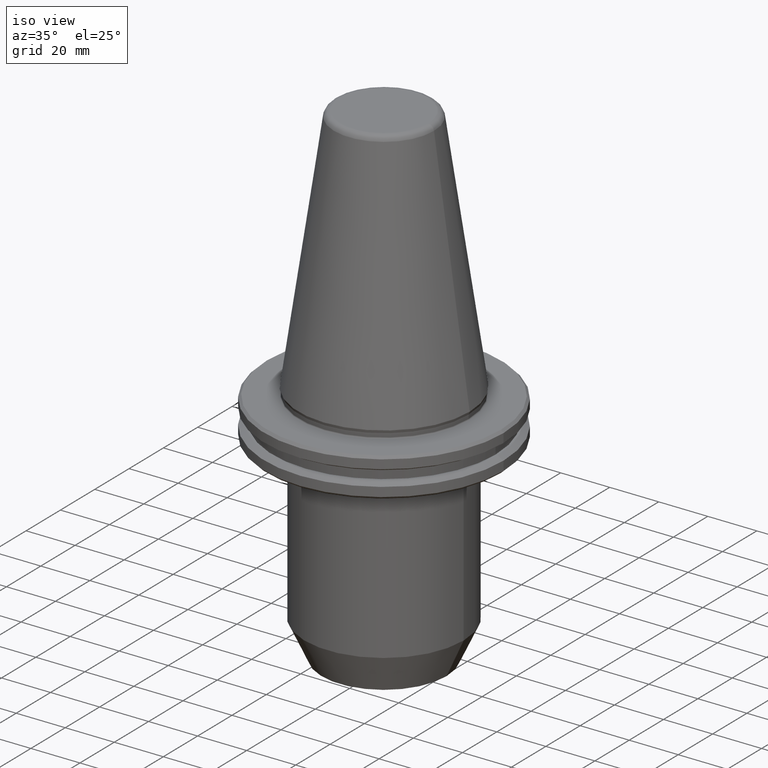
[diagram: clean part render]
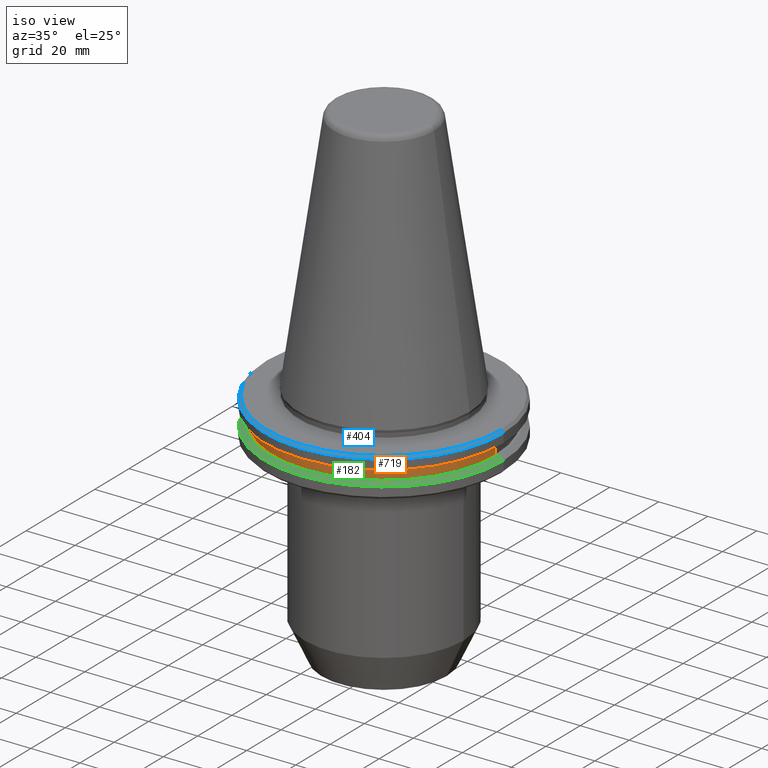
[diagram: same view with three faces highlighted in distinct colors, each labeled with its STEP entity id]
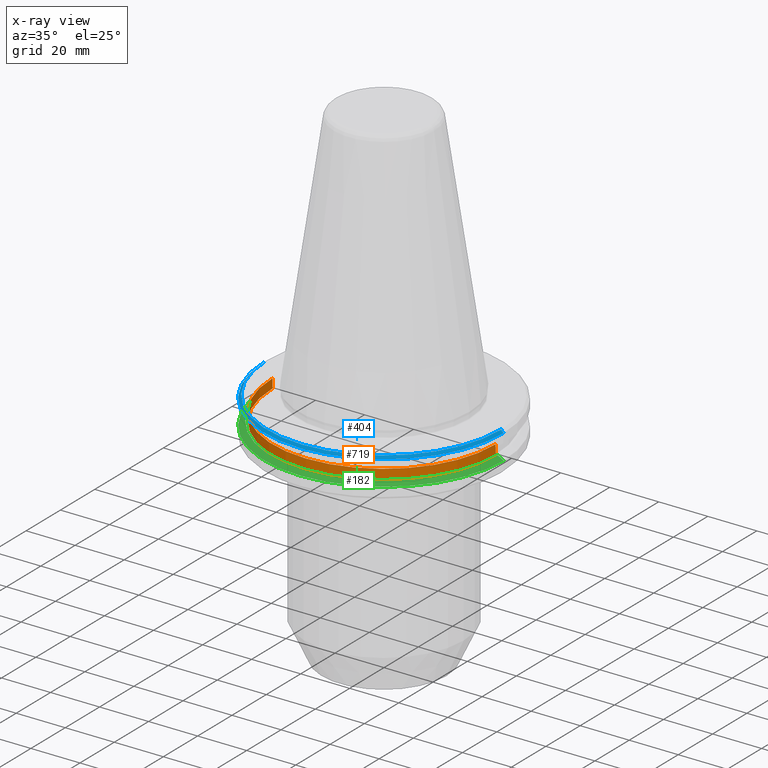
[diagram: x-ray of the same camera — body ghosted, the three highlighted faces saturated]
A machine part, iso view with three faces highlighted in distinct colors.
The next image is the same camera in x-ray (body ghosted, the three faces saturated) — at least one of them is partly hidden behind the body in this view.
Their STEP definitions:

[orange] entity #719 — the highlighted cylindrical surface (partial cylindrical patch) has radius 45.5 mm, axis along (-0, -0, 1).
#20 = VECTOR ( 'NONE', #390, 1000.000000000000000 ) ;
#42 = FACE_OUTER_BOUND ( 'NONE', #221, .T. ) ;
#92 = DIRECTION ( 'NONE',  ( -0.0000000000000000000, -0.0000000000000000000, 1.000000000000000000 ) ) ;
#96 = CARTESIAN_POINT ( 'NONE',  ( 45.50000000000020600, 0.0000000000000000000, -12.97500000000006900 ) ) ;
#97 = VECTOR ( 'NONE', #92, 1000.000000000000000 ) ;
#123 = ORIENTED_EDGE ( 'NONE', *, *, #367, .T. ) ;
#166 = AXIS2_PLACEMENT_3D ( 'NONE', #344, #880, #705 ) ;
#214 = VERTEX_POINT ( 'NONE', #96 ) ;
#221 = EDGE_LOOP ( 'NONE', ( #351, #375, #123, #531 ) ) ;
#237 = LINE ( 'NONE', #779, #20 ) ;
#344 = CARTESIAN_POINT ( 'NONE',  ( 0.0000000000000000000, 0.0000000000000000000, -12.97500000000006900 ) ) ;
#351 = ORIENTED_EDGE ( 'NONE', *, *, #716, .F. ) ;
#359 = VERTEX_POINT ( 'NONE', #454 ) ;
#367 = EDGE_CURVE ( 'NONE', #214, #872, #718, .T. ) ;
#374 = CARTESIAN_POINT ( 'NONE',  ( 0.0000000000000000000, 0.0000000000000000000, -9.224999999999926800 ) ) ;
#375 = ORIENTED_EDGE ( 'NONE', *, *, #514, .T. ) ;
#390 = DIRECTION ( 'NONE',  ( -0.0000000000000000000, -0.0000000000000000000, 1.000000000000000000 ) ) ;
#413 = CYLINDRICAL_SURFACE ( 'NONE', #825, 45.50000000000020600 ) ;
#414 = DIRECTION ( 'NONE',  ( -0.0000000000000000000, -0.0000000000000000000, 1.000000000000000000 ) ) ;
#454 = CARTESIAN_POINT ( 'NONE',  ( -45.50000000000020600, 5.572142936120482400E-015, -9.224999999999926800 ) ) ;
#514 = EDGE_CURVE ( 'NONE', #594, #214, #836, .T. ) ;
#531 = ORIENTED_EDGE ( 'NONE', *, *, #870, .F. ) ;
#541 = CARTESIAN_POINT ( 'NONE',  ( -45.50000000000020600, 5.572142936120482400E-015, -12.97500000000006900 ) ) ;
#562 = CIRCLE ( 'NONE', #952, 45.50000000000020600 ) ;
#594 = VERTEX_POINT ( 'NONE', #541 ) ;
#705 = DIRECTION ( 'NONE',  ( 1.000000000000000000, 0.0000000000000000000, 0.0000000000000000000 ) ) ;
#716 = EDGE_CURVE ( 'NONE', #594, #359, #237, .T. ) ;
#718 = LINE ( 'NONE', #720, #97 ) ;
#719 = ADVANCED_FACE ( 'NONE', ( #42 ), #413, .T. ) ;
#720 = CARTESIAN_POINT ( 'NONE',  ( 45.50000000000020600, 0.0000000000000000000, 101.7499999999999600 ) ) ;
#779 = CARTESIAN_POINT ( 'NONE',  ( -45.50000000000020600, 5.572142936120482400E-015, 101.7499999999999600 ) ) ;
#825 = AXIS2_PLACEMENT_3D ( 'NONE', #924, #414, #849 ) ;
#836 = CIRCLE ( 'NONE', #166, 45.50000000000020600 ) ;
#849 = DIRECTION ( 'NONE',  ( 1.000000000000000000, 0.0000000000000000000, 0.0000000000000000000 ) ) ;
#870 = EDGE_CURVE ( 'NONE', #359, #872, #562, .T. ) ;
#872 = VERTEX_POINT ( 'NONE', #996 ) ;
#880 = DIRECTION ( 'NONE',  ( -0.0000000000000000000, -0.0000000000000000000, 1.000000000000000000 ) ) ;
#903 = DIRECTION ( 'NONE',  ( -0.0000000000000000000, -0.0000000000000000000, 1.000000000000000000 ) ) ;
#924 = CARTESIAN_POINT ( 'NONE',  ( 0.0000000000000000000, 0.0000000000000000000, 101.7499999999999600 ) ) ;
#952 = AXIS2_PLACEMENT_3D ( 'NONE', #374, #903, #972 ) ;
#972 = DIRECTION ( 'NONE',  ( 1.000000000000000000, 0.0000000000000000000, 0.0000000000000000000 ) ) ;
#996 = CARTESIAN_POINT ( 'NONE',  ( 45.50000000000020600, 0.0000000000000000000, -9.224999999999926800 ) ) ;

[blue] entity #404 — the highlighted conical surface has half-angle 45 deg.
#61 = CONICAL_SURFACE ( 'NONE', #225, 48.74999999999995700, 0.7853981633974482800 ) ;
#139 = DIRECTION ( 'NONE',  ( 1.000000000000000000, 0.0000000000000000000, 0.0000000000000000000 ) ) ;
#178 = ORIENTED_EDGE ( 'NONE', *, *, #703, .T. ) ;
#200 = CIRCLE ( 'NONE', #438, 47.74999999999995700 ) ;
#210 = VERTEX_POINT ( 'NONE', #940 ) ;
#223 = CARTESIAN_POINT ( 'NONE',  ( 0.0000000000000000000, 0.0000000000000000000, -3.199999999999869600 ) ) ;
#225 = AXIS2_PLACEMENT_3D ( 'NONE', #617, #291, #897 ) ;
#262 = CIRCLE ( 'NONE', #320, 48.74999999999995700 ) ;
#283 = CARTESIAN_POINT ( 'NONE',  ( 47.74999999999995700, 5.908920805885974100E-015, -3.199999999999869600 ) ) ;
#285 = EDGE_CURVE ( 'NONE', #597, #827, #200, .T. ) ;
#286 = FACE_OUTER_BOUND ( 'NONE', #650, .T. ) ;
#291 = DIRECTION ( 'NONE',  ( 0.0000000000000000000, 0.0000000000000000000, -1.000000000000000000 ) ) ;
#294 = CARTESIAN_POINT ( 'NONE',  ( 48.74999999999995700, 5.970153145843342400E-015, -4.199999999999870500 ) ) ;
#320 = AXIS2_PLACEMENT_3D ( 'NONE', #887, #540, #745 ) ;
#404 = ADVANCED_FACE ( 'NONE', ( #286 ), #61, .T. ) ;
#416 = DIRECTION ( 'NONE',  ( 0.7071067811865474600, 8.659560562354931600E-017, -0.7071067811865475700 ) ) ;
#423 = ORIENTED_EDGE ( 'NONE', *, *, #526, .F. ) ;
#438 = AXIS2_PLACEMENT_3D ( 'NONE', #223, #676, #139 ) ;
#440 = ORIENTED_EDGE ( 'NONE', *, *, #285, .F. ) ;
#469 = CARTESIAN_POINT ( 'NONE',  ( -47.74999999999995700, 0.0000000000000000000, -3.199999999999869600 ) ) ;
#489 = CARTESIAN_POINT ( 'NONE',  ( -48.74999999999995700, 0.0000000000000000000, -4.199999999999870500 ) ) ;
#526 = EDGE_CURVE ( 'NONE', #827, #567, #981, .T. ) ;
#540 = DIRECTION ( 'NONE',  ( -0.0000000000000000000, -0.0000000000000000000, 1.000000000000000000 ) ) ;
#567 = VERTEX_POINT ( 'NONE', #616 ) ;
#577 = VECTOR ( 'NONE', #416, 1000.000000000000000 ) ;
#597 = VERTEX_POINT ( 'NONE', #469 ) ;
#616 = CARTESIAN_POINT ( 'NONE',  ( 48.74999999999995700, 0.0000000000000000000, -4.199999999999870500 ) ) ;
#617 = CARTESIAN_POINT ( 'NONE',  ( 0.0000000000000000000, 0.0000000000000000000, -4.199999999999870500 ) ) ;
#637 = VECTOR ( 'NONE', #723, 1000.000000000000000 ) ;
#650 = EDGE_LOOP ( 'NONE', ( #423, #440, #917, #178 ) ) ;
#655 = LINE ( 'NONE', #489, #637 ) ;
#676 = DIRECTION ( 'NONE',  ( -0.0000000000000000000, -0.0000000000000000000, 1.000000000000000000 ) ) ;
#703 = EDGE_CURVE ( 'NONE', #210, #567, #262, .T. ) ;
#707 = EDGE_CURVE ( 'NONE', #597, #210, #655, .T. ) ;
#723 = DIRECTION ( 'NONE',  ( -0.7071067811865474600, 0.0000000000000000000, -0.7071067811865475700 ) ) ;
#745 = DIRECTION ( 'NONE',  ( 1.000000000000000000, 0.0000000000000000000, 0.0000000000000000000 ) ) ;
#827 = VERTEX_POINT ( 'NONE', #283 ) ;
#887 = CARTESIAN_POINT ( 'NONE',  ( 0.0000000000000000000, 0.0000000000000000000, -4.199999999999870500 ) ) ;
#897 = DIRECTION ( 'NONE',  ( -1.000000000000000000, 0.0000000000000000000, 0.0000000000000000000 ) ) ;
#917 = ORIENTED_EDGE ( 'NONE', *, *, #707, .T. ) ;
#940 = CARTESIAN_POINT ( 'NONE',  ( -48.74999999999995700, 5.970153145843342400E-015, -4.199999999999870500 ) ) ;
#981 = LINE ( 'NONE', #294, #577 ) ;

[green] entity #182 — the highlighted conical surface has half-angle 60 deg.
#5 = DIRECTION ( 'NONE',  ( -1.000000000000000000, 0.0000000000000000000, 0.0000000000000000000 ) ) ;
#19 = DIRECTION ( 'NONE',  ( -0.0000000000000000000, -0.0000000000000000000, 1.000000000000000000 ) ) ;
#59 = CARTESIAN_POINT ( 'NONE',  ( -46.37259526419124000, 0.0000000000000000000, -12.97500000000006900 ) ) ;
#67 = CARTESIAN_POINT ( 'NONE',  ( 0.0000000000000000000, 0.0000000000000000000, -14.34759526419204800 ) ) ;
#73 = CARTESIAN_POINT ( 'NONE',  ( -48.75000000000018500, 0.0000000000000000000, -14.34759526419204800 ) ) ;
#116 = DIRECTION ( 'NONE',  ( 0.0000000000000000000, 0.0000000000000000000, -1.000000000000000000 ) ) ;
#176 = VECTOR ( 'NONE', #569, 1000.000000000000100 ) ;
#182 = ADVANCED_FACE ( 'NONE', ( #428 ), #408, .T. ) ;
#186 = EDGE_CURVE ( 'NONE', #314, #905, #606, .T. ) ;
#199 = LINE ( 'NONE', #751, #176 ) ;
#314 = VERTEX_POINT ( 'NONE', #59 ) ;
#329 = ORIENTED_EDGE ( 'NONE', *, *, #532, .F. ) ;
#356 = LINE ( 'NONE', #73, #790 ) ;
#408 = CONICAL_SURFACE ( 'NONE', #542, 48.75000000000018500, 1.047197551196599400 ) ;
#412 = CARTESIAN_POINT ( 'NONE',  ( 0.0000000000000000000, 0.0000000000000000000, -12.97500000000006900 ) ) ;
#420 = EDGE_LOOP ( 'NONE', ( #329, #931, #522, #954 ) ) ;
#422 = CARTESIAN_POINT ( 'NONE',  ( 48.75000000000018500, 0.0000000000000000000, -14.34759526419204800 ) ) ;
#428 = FACE_OUTER_BOUND ( 'NONE', #420, .T. ) ;
#465 = VERTEX_POINT ( 'NONE', #709 ) ;
#471 = AXIS2_PLACEMENT_3D ( 'NONE', #67, #604, #773 ) ;
#480 = DIRECTION ( 'NONE',  ( 1.000000000000000000, 0.0000000000000000000, 0.0000000000000000000 ) ) ;
#522 = ORIENTED_EDGE ( 'NONE', *, *, #552, .T. ) ;
#524 = CIRCLE ( 'NONE', #471, 48.75000000000018500 ) ;
#532 = EDGE_CURVE ( 'NONE', #905, #726, #199, .T. ) ;
#538 = AXIS2_PLACEMENT_3D ( 'NONE', #412, #19, #480 ) ;
#542 = AXIS2_PLACEMENT_3D ( 'NONE', #560, #116, #5 ) ;
#552 = EDGE_CURVE ( 'NONE', #314, #465, #356, .T. ) ;
#560 = CARTESIAN_POINT ( 'NONE',  ( 0.0000000000000000000, 0.0000000000000000000, -14.34759526419204800 ) ) ;
#569 = DIRECTION ( 'NONE',  ( 0.8660254037844393700, 1.060575238724907800E-016, -0.4999999999999985000 ) ) ;
#604 = DIRECTION ( 'NONE',  ( -0.0000000000000000000, -0.0000000000000000000, 1.000000000000000000 ) ) ;
#606 = CIRCLE ( 'NONE', #538, 46.37259526419124000 ) ;
#709 = CARTESIAN_POINT ( 'NONE',  ( -48.75000000000018500, 5.970153145843369200E-015, -14.34759526419204800 ) ) ;
#726 = VERTEX_POINT ( 'NONE', #422 ) ;
#751 = CARTESIAN_POINT ( 'NONE',  ( 48.75000000000018500, 5.970153145843369200E-015, -14.34759526419204800 ) ) ;
#759 = CARTESIAN_POINT ( 'NONE',  ( 46.37259526419124000, 5.824579090844060500E-015, -12.97500000000006900 ) ) ;
#773 = DIRECTION ( 'NONE',  ( 1.000000000000000000, 0.0000000000000000000, 0.0000000000000000000 ) ) ;
#790 = VECTOR ( 'NONE', #798, 1000.000000000000100 ) ;
#798 = DIRECTION ( 'NONE',  ( -0.8660254037844393700, 0.0000000000000000000, -0.4999999999999985000 ) ) ;
#885 = EDGE_CURVE ( 'NONE', #465, #726, #524, .T. ) ;
#905 = VERTEX_POINT ( 'NONE', #759 ) ;
#931 = ORIENTED_EDGE ( 'NONE', *, *, #186, .F. ) ;
#954 = ORIENTED_EDGE ( 'NONE', *, *, #885, .T. ) ;